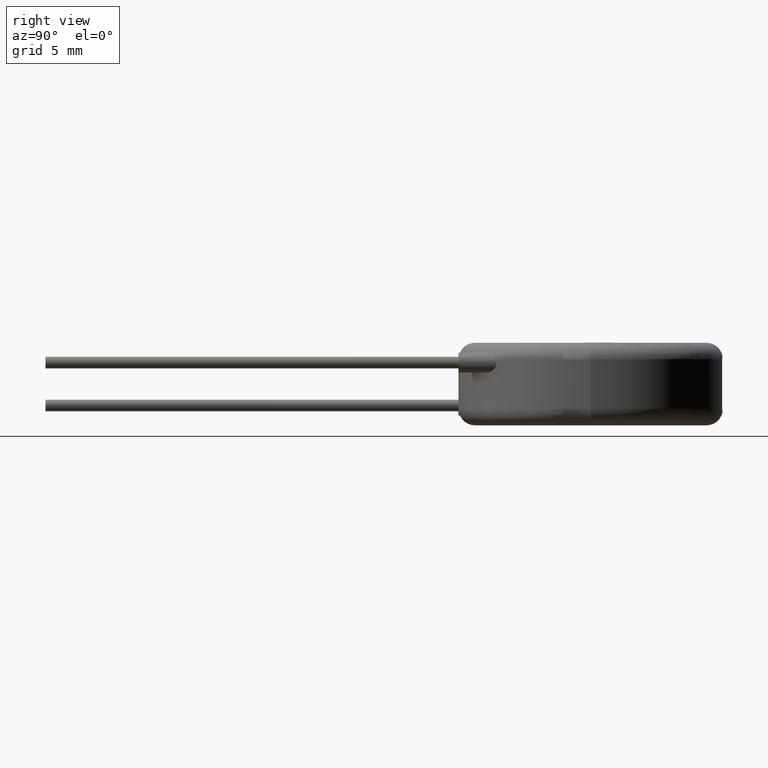
[diagram: clean part render]
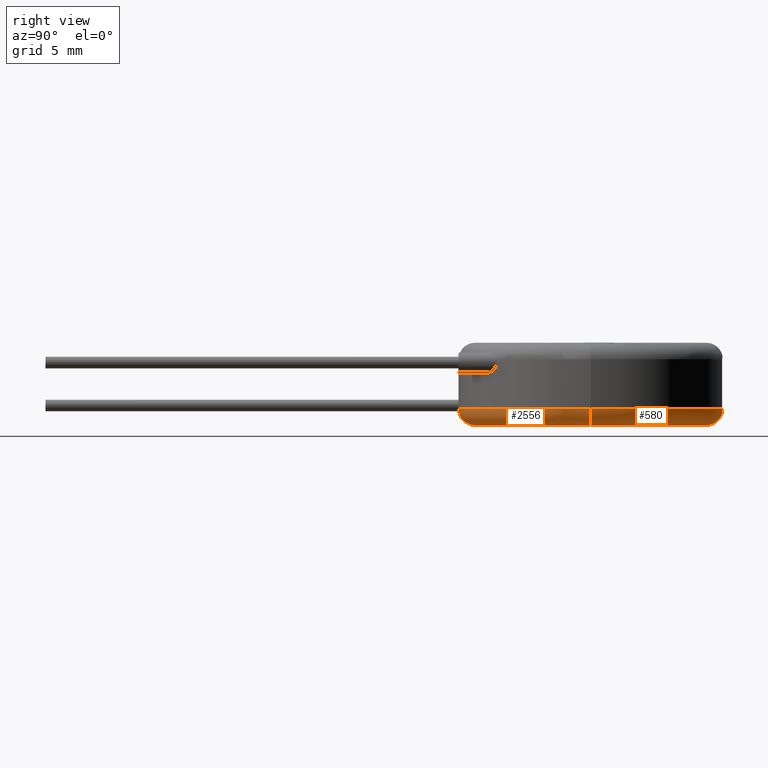
[diagram: same view with one multi-face feature highlighted, each face labeled with its STEP entity id]
A machine part, right view. The highlighted faces form ONE feature: a constant-radius fillet chain: 2 tangent blend faces with common blend radius 1 mm. The faces share edges in the B-rep.
Their STEP definitions:
[1] entity #2556 (Torus):
#4 = CIRCLE ( 'NONE', #1749, 1.000000000000000000 ) ;
#13 = CARTESIAN_POINT ( 'NONE',  ( -4.459343305269498181, -6.641924536197910456, 0.9292080605425810935 ) ) ;
#31 = CARTESIAN_POINT ( 'NONE',  ( -4.624303091938218202, -6.483076091975149780, 0.7285236949541872287 ) ) ;
#42 = EDGE_CURVE ( 'NONE', #739, #1427, #1742, .T. ) ;
#69 = CARTESIAN_POINT ( 'NONE',  ( 0.000000000000000000, 0.000000000000000000, 1.000000000000000000 ) ) ;
#105 = EDGE_CURVE ( 'NONE', #1870, #3178, #1974, .T. ) ;
#138 = AXIS2_PLACEMENT_3D ( 'NONE', #1494, #1737, #627 ) ;
#162 = DIRECTION ( 'NONE',  ( -0.000000000000000000, -0.000000000000000000, -1.000000000000000000 ) ) ;
#184 = DIRECTION ( 'NONE',  ( 1.000000000000000000, 0.000000000000000000, 0.000000000000000000 ) ) ;
#257 = CARTESIAN_POINT ( 'NONE',  ( -4.434314575050755103, -6.658592512648032091, 1.000000000000001998 ) ) ;
#355 = ORIENTED_EDGE ( 'NONE', *, *, #42, .F. ) ;
#362 = TOROIDAL_SURFACE ( 'NONE', #852, 7.000000000000000000, 1.000000000000000000 ) ;
#390 = DIRECTION ( 'NONE',  ( -1.000000000000000000, 1.224646799147352468E-16, 0.000000000000000000 ) ) ;
#458 = EDGE_CURVE ( 'NONE', #1954, #1870, #2490, .T. ) ;
#483 = EDGE_CURVE ( 'NONE', #1121, #739, #666, .T. ) ;
#578 = CARTESIAN_POINT ( 'NONE',  ( -4.434314575050755103, -6.658592512648032091, 1.000000000000001998 ) ) ;
#624 = ORIENTED_EDGE ( 'NONE', *, *, #483, .F. ) ;
#627 = DIRECTION ( 'NONE',  ( 1.000000000000000000, 0.000000000000000000, 0.000000000000000000 ) ) ;
#632 = VERTEX_POINT ( 'NONE', #2045 ) ;
#666 = B_SPLINE_CURVE_WITH_KNOTS ( 'NONE', 3,
 ( #2459, #1334, #785, #31, #3203, #1869, #13, #578 ),
 .UNSPECIFIED., .F., .F.,
 ( 4, 2, 2, 4 ),
 ( 0.0008374136914015548917, 0.001290666578392068390, 0.001517293021887323621, 0.001743919465382578853 ),
 .UNSPECIFIED. ) ;
#739 = VERTEX_POINT ( 'NONE', #257 ) ;
#769 = FACE_OUTER_BOUND ( 'NONE', #2862, .T. ) ;
#785 = CARTESIAN_POINT ( 'NONE',  ( -4.771882881000026444, -6.338223724800607251, 0.6328008534867475277 ) ) ;
#846 = ORIENTED_EDGE ( 'NONE', *, *, #2978, .F. ) ;
#852 = AXIS2_PLACEMENT_3D ( 'NONE', #1002, #2613, #184 ) ;
#1002 = CARTESIAN_POINT ( 'NONE',  ( 0.000000000000000000, 0.000000000000000000, 1.000000000000000000 ) ) ;
#1121 = VERTEX_POINT ( 'NONE', #3372 ) ;
#1129 = B_SPLINE_CURVE_WITH_KNOTS ( 'NONE', 3,
 ( #2182, #1341, #1327, #1574, #2736, #3472 ),
 .UNSPECIFIED., .F., .F.,
 ( 4, 2, 4 ),
 ( 2.196744402614745910E-07, 0.0004188166829209082152, 0.0008374136914015548917 ),
 .UNSPECIFIED. ) ;
#1228 = EDGE_CURVE ( 'NONE', #1954, #1427, #4, .T. ) ;
#1238 = AXIS2_PLACEMENT_3D ( 'NONE', #2802, #3315, #390 ) ;
#1244 = DIRECTION ( 'NONE',  ( 1.000000000000000000, 0.000000000000000000, 0.000000000000000000 ) ) ;
#1327 = CARTESIAN_POINT ( 'NONE',  ( -5.433924960415740912, -5.838726111812415631, 0.7672469280072699016 ) ) ;
#1334 = CARTESIAN_POINT ( 'NONE',  ( -4.882508047927267114, -6.233401362512419830, 0.6000000000000652589 ) ) ;
#1341 = CARTESIAN_POINT ( 'NONE',  ( -5.520776025644094531, -5.790072608167231571, 0.8729770368492686394 ) ) ;
#1412 = AXIS2_PLACEMENT_3D ( 'NONE', #2596, #162, #1244 ) ;
#1427 = VERTEX_POINT ( 'NONE', #3050 ) ;
#1494 = CARTESIAN_POINT ( 'NONE',  ( 0.000000000000000000, 0.000000000000000000, 1.000000000000000000 ) ) ;
#1574 = CARTESIAN_POINT ( 'NONE',  ( -5.225440979353766835, -5.968571962709455114, 0.6301382120031530087 ) ) ;
#1689 = ORIENTED_EDGE ( 'NONE', *, *, #458, .F. ) ;
#1725 = DIRECTION ( 'NONE',  ( 1.000000000000000000, 0.000000000000000000, 0.000000000000000000 ) ) ;
#1737 = DIRECTION ( 'NONE',  ( 0.000000000000000000, 0.000000000000000000, 1.000000000000000000 ) ) ;
#1742 = CIRCLE ( 'NONE', #3150, 8.000000000000000000 ) ;
#1749 = AXIS2_PLACEMENT_3D ( 'NONE', #3241, #3016, #2474 ) ;
#1869 = CARTESIAN_POINT ( 'NONE',  ( -4.495482335405947438, -6.608830326433362323, 0.8687897678561262715 ) ) ;
#1870 = VERTEX_POINT ( 'NONE', #2115 ) ;
#1954 = VERTEX_POINT ( 'NONE', #2755 ) ;
#1974 = CIRCLE ( 'NONE', #1238, 1.000000000000000000 ) ;
#2045 = CARTESIAN_POINT ( 'NONE',  ( -5.565685424949238680, -5.746576872409139725, 1.000000000000000000 ) ) ;
#2115 = CARTESIAN_POINT ( 'NONE',  ( -7.000000000000000000, 9.184850993605147944E-16, 0.000000000000000000 ) ) ;
#2179 = ORIENTED_EDGE ( 'NONE', *, *, #1228, .T. ) ;
#2182 = CARTESIAN_POINT ( 'NONE',  ( -5.565685424949238680, -5.746576872409139725, 1.000000000000000000 ) ) ;
#2367 = CARTESIAN_POINT ( 'NONE',  ( -8.000000000000000000, 0.000000000000000000, 1.000000000000000000 ) ) ;
#2459 = CARTESIAN_POINT ( 'NONE',  ( -4.999999999999650946, -6.137687833857293107, 0.5999999999999970912 ) ) ;
#2474 = DIRECTION ( 'NONE',  ( 0.000000000000000000, 0.000000000000000000, -1.000000000000000000 ) ) ;
#2490 = CIRCLE ( 'NONE', #1412, 7.000000000000000000 ) ;
#2556 = ADVANCED_FACE ( 'NONE', ( #769 ), #362, .T. ) ;
#2596 = CARTESIAN_POINT ( 'NONE',  ( 0.000000000000000000, 0.000000000000000000, 0.000000000000000000 ) ) ;
#2613 = DIRECTION ( 'NONE',  ( 0.000000000000000000, 0.000000000000000000, 1.000000000000000000 ) ) ;
#2736 = CARTESIAN_POINT ( 'NONE',  ( -5.108508475223286105, -6.049292595975440889, 0.5999999999999344746 ) ) ;
#2743 = CIRCLE ( 'NONE', #138, 8.000000000000000000 ) ;
#2755 = CARTESIAN_POINT ( 'NONE',  ( 7.000000000000000000, 0.000000000000000000, 0.000000000000000000 ) ) ;
#2802 = CARTESIAN_POINT ( 'NONE',  ( -7.000000000000000000, 8.572527594031473190E-16, 1.000000000000000000 ) ) ;
#2862 = EDGE_LOOP ( 'NONE', ( #3361, #1689, #2179, #355, #624, #2912, #846 ) ) ;
#2912 = ORIENTED_EDGE ( 'NONE', *, *, #3457, .F. ) ;
#2978 = EDGE_CURVE ( 'NONE', #3178, #632, #2743, .T. ) ;
#3016 = DIRECTION ( 'NONE',  ( 0.000000000000000000, -1.000000000000000000, 0.000000000000000000 ) ) ;
#3050 = CARTESIAN_POINT ( 'NONE',  ( 8.000000000000000000, 9.797174393178825657E-16, 1.000000000000000000 ) ) ;
#3087 = DIRECTION ( 'NONE',  ( 0.000000000000000000, 0.000000000000000000, 1.000000000000000000 ) ) ;
#3150 = AXIS2_PLACEMENT_3D ( 'NONE', #69, #3087, #1725 ) ;
#3178 = VERTEX_POINT ( 'NONE', #2367 ) ;
#3203 = CARTESIAN_POINT ( 'NONE',  ( -4.578262181044503443, -6.529120081616557769, 0.7682877071163075611 ) ) ;
#3241 = CARTESIAN_POINT ( 'NONE',  ( 7.000000000000000000, 0.000000000000000000, 1.000000000000000000 ) ) ;
#3315 = DIRECTION ( 'NONE',  ( 1.224646799147353207E-16, 1.000000000000000000, -0.000000000000000000 ) ) ;
#3361 = ORIENTED_EDGE ( 'NONE', *, *, #105, .F. ) ;
#3372 = CARTESIAN_POINT ( 'NONE',  ( -4.999999999999650946, -6.137687833857293107, 0.5999999999999970912 ) ) ;
#3457 = EDGE_CURVE ( 'NONE', #632, #1121, #1129, .T. ) ;
#3472 = CARTESIAN_POINT ( 'NONE',  ( -4.999999999999650946, -6.137687833857293107, 0.5999999999999970912 ) ) ;
[2] entity #580 (Torus):
#4 = CIRCLE ( 'NONE', #1749, 1.000000000000000000 ) ;
#105 = EDGE_CURVE ( 'NONE', #1870, #3178, #1974, .T. ) ;
#122 = AXIS2_PLACEMENT_3D ( 'NONE', #1979, #2551, #3030 ) ;
#139 = CARTESIAN_POINT ( 'NONE',  ( 0.000000000000000000, 0.000000000000000000, 1.000000000000000000 ) ) ;
#167 = CARTESIAN_POINT ( 'NONE',  ( 0.000000000000000000, 0.000000000000000000, 0.000000000000000000 ) ) ;
#390 = DIRECTION ( 'NONE',  ( -1.000000000000000000, 1.224646799147352468E-16, 0.000000000000000000 ) ) ;
#465 = CIRCLE ( 'NONE', #122, 8.000000000000000000 ) ;
#580 = ADVANCED_FACE ( 'NONE', ( #1475 ), #929, .T. ) ;
#643 = EDGE_CURVE ( 'NONE', #1870, #1954, #2418, .T. ) ;
#753 = DIRECTION ( 'NONE',  ( -0.000000000000000000, -0.000000000000000000, -1.000000000000000000 ) ) ;
#877 = DIRECTION ( 'NONE',  ( 1.000000000000000000, 0.000000000000000000, 0.000000000000000000 ) ) ;
#929 = TOROIDAL_SURFACE ( 'NONE', #1169, 7.000000000000000000, 1.000000000000000000 ) ;
#1105 = ORIENTED_EDGE ( 'NONE', *, *, #643, .F. ) ;
#1169 = AXIS2_PLACEMENT_3D ( 'NONE', #139, #1738, #877 ) ;
#1228 = EDGE_CURVE ( 'NONE', #1954, #1427, #4, .T. ) ;
#1238 = AXIS2_PLACEMENT_3D ( 'NONE', #2802, #3315, #390 ) ;
#1314 = EDGE_CURVE ( 'NONE', #1427, #3178, #465, .T. ) ;
#1427 = VERTEX_POINT ( 'NONE', #3050 ) ;
#1475 = FACE_OUTER_BOUND ( 'NONE', #3201, .T. ) ;
#1738 = DIRECTION ( 'NONE',  ( 0.000000000000000000, 0.000000000000000000, 1.000000000000000000 ) ) ;
#1749 = AXIS2_PLACEMENT_3D ( 'NONE', #3241, #3016, #2474 ) ;
#1781 = ORIENTED_EDGE ( 'NONE', *, *, #1314, .F. ) ;
#1870 = VERTEX_POINT ( 'NONE', #2115 ) ;
#1884 = ORIENTED_EDGE ( 'NONE', *, *, #1228, .F. ) ;
#1954 = VERTEX_POINT ( 'NONE', #2755 ) ;
#1974 = CIRCLE ( 'NONE', #1238, 1.000000000000000000 ) ;
#1979 = CARTESIAN_POINT ( 'NONE',  ( 0.000000000000000000, 0.000000000000000000, 1.000000000000000000 ) ) ;
#2115 = CARTESIAN_POINT ( 'NONE',  ( -7.000000000000000000, 9.184850993605147944E-16, 0.000000000000000000 ) ) ;
#2367 = CARTESIAN_POINT ( 'NONE',  ( -8.000000000000000000, 0.000000000000000000, 1.000000000000000000 ) ) ;
#2368 = DIRECTION ( 'NONE',  ( 1.000000000000000000, 0.000000000000000000, 0.000000000000000000 ) ) ;
#2418 = CIRCLE ( 'NONE', #2818, 7.000000000000000000 ) ;
#2474 = DIRECTION ( 'NONE',  ( 0.000000000000000000, 0.000000000000000000, -1.000000000000000000 ) ) ;
#2551 = DIRECTION ( 'NONE',  ( 0.000000000000000000, 0.000000000000000000, 1.000000000000000000 ) ) ;
#2755 = CARTESIAN_POINT ( 'NONE',  ( 7.000000000000000000, 0.000000000000000000, 0.000000000000000000 ) ) ;
#2802 = CARTESIAN_POINT ( 'NONE',  ( -7.000000000000000000, 8.572527594031473190E-16, 1.000000000000000000 ) ) ;
#2818 = AXIS2_PLACEMENT_3D ( 'NONE', #167, #753, #2368 ) ;
#2969 = ORIENTED_EDGE ( 'NONE', *, *, #105, .T. ) ;
#3016 = DIRECTION ( 'NONE',  ( 0.000000000000000000, -1.000000000000000000, 0.000000000000000000 ) ) ;
#3030 = DIRECTION ( 'NONE',  ( 1.000000000000000000, 0.000000000000000000, 0.000000000000000000 ) ) ;
#3050 = CARTESIAN_POINT ( 'NONE',  ( 8.000000000000000000, 9.797174393178825657E-16, 1.000000000000000000 ) ) ;
#3178 = VERTEX_POINT ( 'NONE', #2367 ) ;
#3201 = EDGE_LOOP ( 'NONE', ( #1105, #2969, #1781, #1884 ) ) ;
#3241 = CARTESIAN_POINT ( 'NONE',  ( 7.000000000000000000, 0.000000000000000000, 1.000000000000000000 ) ) ;
#3315 = DIRECTION ( 'NONE',  ( 1.224646799147353207E-16, 1.000000000000000000, -0.000000000000000000 ) ) ;